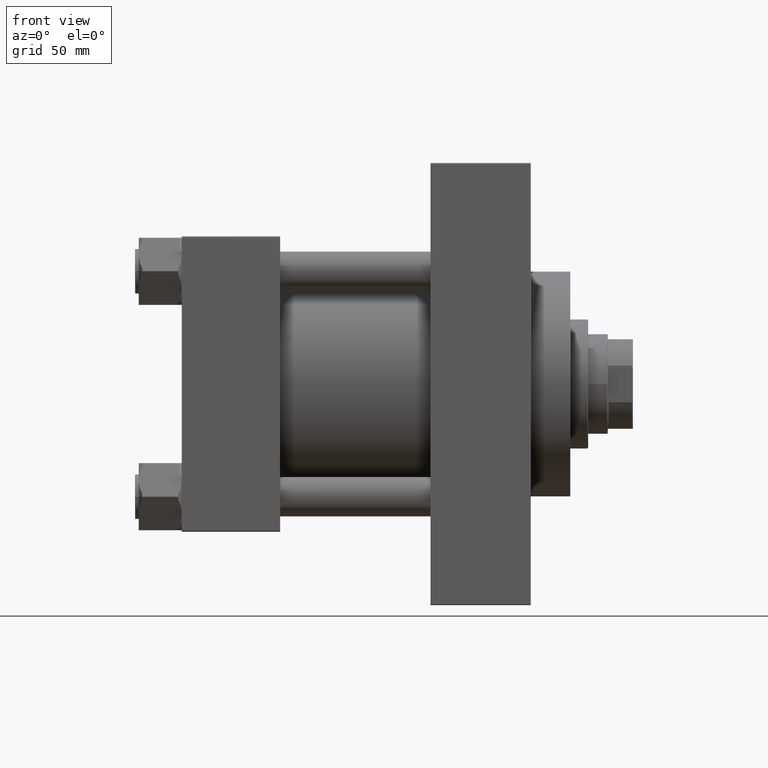
[diagram: clean part render]
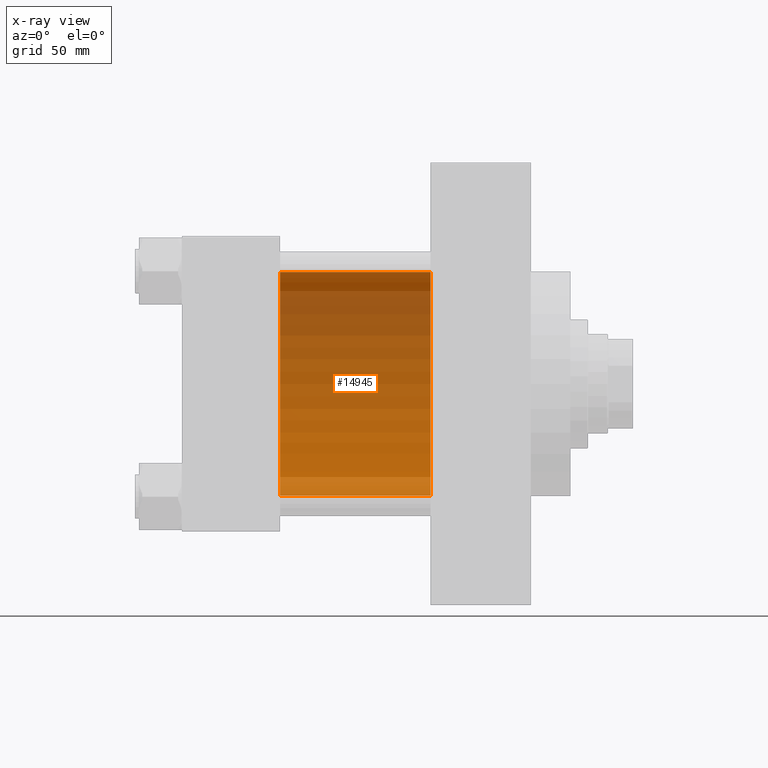
[diagram: x-ray — body ghosted, one internal face saturated and labeled with its STEP entity id]
A machine part, front view, then the same camera in x-ray: the body is ghosted and one INTERNAL B-rep face — a face not visible from any outside direction — is saturated and labeled: STEP entity #14945.
In plain terms, the highlighted cylindrical surface (partial cylindrical patch) has radius 62.5 mm, axis along (-1, -0, -0).
Its self-contained STEP definition (entity closure, byte-faithful):
#1817 = VERTEX_POINT ( 'NONE', #33433 ) ;
#3376 = LINE ( 'NONE', #14517, #37045 ) ;
#3972 = CARTESIAN_POINT ( 'NONE',  ( 55.00000000000000000, -2.602085213965210642E-15, 62.50000000000000000 ) ) ;
#4248 = DIRECTION ( 'NONE',  ( -1.000000000000000000, -0.000000000000000000, -0.000000000000000000 ) ) ;
#4426 = CARTESIAN_POINT ( 'NONE',  ( 55.00000000000000000, -2.602085213965210642E-15, 0.000000000000000000 ) ) ;
#4794 = DIRECTION ( 'NONE',  ( 1.000000000000000000, 0.000000000000000000, 0.000000000000000000 ) ) ;
#5016 = AXIS2_PLACEMENT_3D ( 'NONE', #28735, #32622, #43726 ) ;
#10585 = CYLINDRICAL_SURFACE ( 'NONE', #5016, 62.50000000000000000 ) ;
#11926 = DIRECTION ( 'NONE',  ( 0.000000000000000000, 0.000000000000000000, -1.000000000000000000 ) ) ;
#12841 = VECTOR ( 'NONE', #4248, 1000.000000000000000 ) ;
#13268 = CARTESIAN_POINT ( 'NONE',  ( 139.0000000000000000, 5.051957280705745584E-15, -62.50000000000000000 ) ) ;
#14517 = CARTESIAN_POINT ( 'NONE',  ( 139.0000000000000000, 5.051957280705745584E-15, -62.50000000000000000 ) ) ;
#14945 = ADVANCED_FACE ( 'NONE', ( #28487 ), #10585, .F. ) ;
#18080 = CARTESIAN_POINT ( 'NONE',  ( 139.0000000000000000, -2.602085213965210642E-15, 62.50000000000000000 ) ) ;
#18150 = DIRECTION ( 'NONE',  ( -1.000000000000000000, -0.000000000000000000, -0.000000000000000000 ) ) ;
#21564 = AXIS2_PLACEMENT_3D ( 'NONE', #4426, #45525, #11926 ) ;
#22726 = VERTEX_POINT ( 'NONE', #3972 ) ;
#24072 = ORIENTED_EDGE ( 'NONE', *, *, #27630, .F. ) ;
#25432 = CIRCLE ( 'NONE', #21564, 62.50000000000000000 ) ;
#27051 = DIRECTION ( 'NONE',  ( 0.000000000000000000, 0.000000000000000000, -1.000000000000000000 ) ) ;
#27630 = EDGE_CURVE ( 'NONE', #45272, #1817, #3376, .T. ) ;
#28433 = ORIENTED_EDGE ( 'NONE', *, *, #47469, .F. ) ;
#28487 = FACE_OUTER_BOUND ( 'NONE', #42057, .T. ) ;
#28735 = CARTESIAN_POINT ( 'NONE',  ( 139.0000000000000000, -2.602085213965210642E-15, 0.000000000000000000 ) ) ;
#29900 = LINE ( 'NONE', #18080, #12841 ) ;
#30890 = ORIENTED_EDGE ( 'NONE', *, *, #43648, .T. ) ;
#32270 = AXIS2_PLACEMENT_3D ( 'NONE', #44950, #4794, #27051 ) ;
#32622 = DIRECTION ( 'NONE',  ( -1.000000000000000000, -0.000000000000000000, -0.000000000000000000 ) ) ;
#33433 = CARTESIAN_POINT ( 'NONE',  ( 55.00000000000000000, 5.051957280705745584E-15, -62.50000000000000000 ) ) ;
#36494 = VERTEX_POINT ( 'NONE', #43631 ) ;
#37045 = VECTOR ( 'NONE', #18150, 1000.000000000000000 ) ;
#37165 = EDGE_CURVE ( 'NONE', #36494, #22726, #29900, .T. ) ;
#41525 = ORIENTED_EDGE ( 'NONE', *, *, #37165, .T. ) ;
#42057 = EDGE_LOOP ( 'NONE', ( #24072, #30890, #41525, #28433 ) ) ;
#43631 = CARTESIAN_POINT ( 'NONE',  ( 139.0000000000000000, -2.602085213965210642E-15, 62.50000000000000000 ) ) ;
#43648 = EDGE_CURVE ( 'NONE', #45272, #36494, #44609, .T. ) ;
#43726 = DIRECTION ( 'NONE',  ( 0.000000000000000000, 0.000000000000000000, 1.000000000000000000 ) ) ;
#44609 = CIRCLE ( 'NONE', #32270, 62.50000000000000000 ) ;
#44950 = CARTESIAN_POINT ( 'NONE',  ( 139.0000000000000000, -2.602085213965210642E-15, 0.000000000000000000 ) ) ;
#45272 = VERTEX_POINT ( 'NONE', #13268 ) ;
#45525 = DIRECTION ( 'NONE',  ( 1.000000000000000000, 0.000000000000000000, 0.000000000000000000 ) ) ;
#47469 = EDGE_CURVE ( 'NONE', #1817, #22726, #25432, .T. ) ;